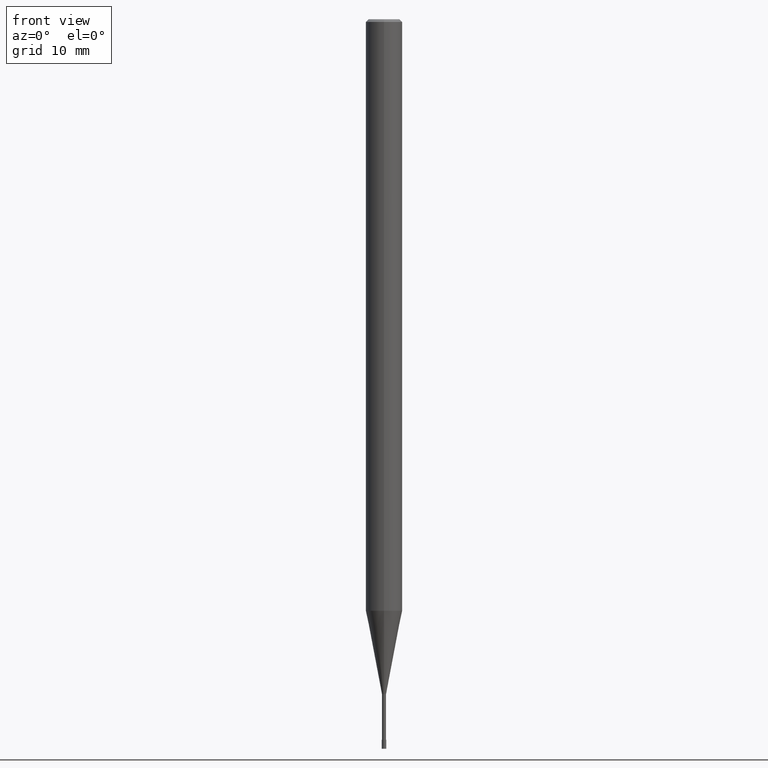
[diagram: clean part render]
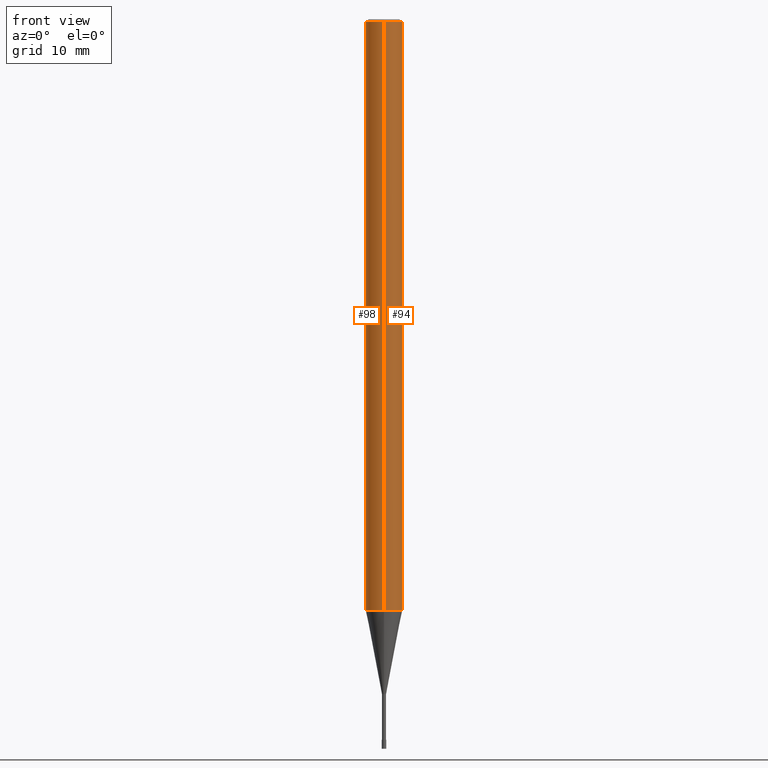
[diagram: same view with one multi-face feature highlighted, each face labeled with its STEP entity id]
A machine part, front view. The highlighted faces form ONE feature: a constant-radius fillet chain: 2 tangent blend faces with common blend radius 2 mm. The faces share edges in the B-rep.
Their STEP definitions:
[1] entity #94 (Cylinder):
#92=VERTEX_POINT('',#229);
#94=ADVANCED_FACE('',(#231),#232,.T.);
#132=VERTEX_POINT('',#277);
#134=EDGE_CURVE('',#132,#182,#279,.T.);
#140=EDGE_CURVE('',#176,#182,#285,.T.);
#148=EDGE_CURVE('',#176,#92,#293,.T.);
#174=EDGE_CURVE('',#92,#132,#322,.T.);
#176=VERTEX_POINT('',#324);
#182=VERTEX_POINT('',#330);
#229=CARTESIAN_POINT('',(0.0,2.0,-64.868));
#231=FACE_OUTER_BOUND('',#376,.T.);
#232=CYLINDRICAL_SURFACE('',#377,2.0);
#277=CARTESIAN_POINT('',(2.44921270764475E-016,-2.0,-64.868));
#279=LINE('',#430,#431);
#285=CIRCLE('',#441,2.0);
#293=LINE('',#455,#456);
#322=CIRCLE('',#492,2.0);
#324=CARTESIAN_POINT('',(0.0,2.0,-0.299999999999997));
#330=CARTESIAN_POINT('',(2.44921270764475E-016,-2.0,-0.299999999999997));
#376=EDGE_LOOP('',(#543,#544,#545,#546));
#377=AXIS2_PLACEMENT_3D('',#547,#548,#549);
#430=CARTESIAN_POINT('',(2.44921270764475E-016,-2.0,-32.584));
#431=VECTOR('',#613,1.0);
#441=AXIS2_PLACEMENT_3D('',#618,#619,#620);
#455=CARTESIAN_POINT('',(-2.44921270764475E-016,2.0,-32.584));
#456=VECTOR('',#626,1.0);
#492=AXIS2_PLACEMENT_3D('',#669,#670,#671);
#543=ORIENTED_EDGE('',*,*,#148,.F.);
#544=ORIENTED_EDGE('',*,*,#140,.T.);
#545=ORIENTED_EDGE('',*,*,#134,.F.);
#546=ORIENTED_EDGE('',*,*,#174,.F.);
#547=CARTESIAN_POINT('',(0.0,0.0,-32.584));
#548=DIRECTION('',(-0.0,-0.0,1.0));
#549=DIRECTION('',(0.0,1.0,0.0));
#613=DIRECTION('',(-0.0,-0.0,1.0));
#618=CARTESIAN_POINT('',(0.0,0.0,-0.299999999999997));
#619=DIRECTION('',(0.0,0.0,-1.0));
#620=DIRECTION('',(0.0,1.0,0.0));
#626=DIRECTION('',(0.0,0.0,-1.0));
#669=CARTESIAN_POINT('',(0.0,0.0,-64.868));
#670=DIRECTION('',(0.0,0.0,-1.0));
#671=DIRECTION('',(0.0,1.0,0.0));
[2] entity #98 (Cylinder):
#92=VERTEX_POINT('',#229);
#98=ADVANCED_FACE('',(#237),#238,.T.);
#116=EDGE_CURVE('',#182,#176,#259,.T.);
#132=VERTEX_POINT('',#277);
#134=EDGE_CURVE('',#132,#182,#279,.T.);
#148=EDGE_CURVE('',#176,#92,#293,.T.);
#150=EDGE_CURVE('',#132,#92,#295,.T.);
#176=VERTEX_POINT('',#324);
#182=VERTEX_POINT('',#330);
#229=CARTESIAN_POINT('',(0.0,2.0,-64.868));
#237=FACE_OUTER_BOUND('',#382,.T.);
#238=CYLINDRICAL_SURFACE('',#383,2.0);
#259=CIRCLE('',#406,2.0);
#277=CARTESIAN_POINT('',(2.44921270764475E-016,-2.0,-64.868));
#279=LINE('',#430,#431);
#293=LINE('',#455,#456);
#295=CIRCLE('',#459,2.0);
#324=CARTESIAN_POINT('',(0.0,2.0,-0.299999999999997));
#330=CARTESIAN_POINT('',(2.44921270764475E-016,-2.0,-0.299999999999997));
#382=EDGE_LOOP('',(#557,#558,#559,#560));
#383=AXIS2_PLACEMENT_3D('',#561,#562,#563);
#406=AXIS2_PLACEMENT_3D('',#588,#589,#590);
#430=CARTESIAN_POINT('',(2.44921270764475E-016,-2.0,-32.584));
#431=VECTOR('',#613,1.0);
#455=CARTESIAN_POINT('',(-2.44921270764475E-016,2.0,-32.584));
#456=VECTOR('',#626,1.0);
#459=AXIS2_PLACEMENT_3D('',#627,#628,#629);
#557=ORIENTED_EDGE('',*,*,#148,.T.);
#558=ORIENTED_EDGE('',*,*,#150,.F.);
#559=ORIENTED_EDGE('',*,*,#134,.T.);
#560=ORIENTED_EDGE('',*,*,#116,.T.);
#561=CARTESIAN_POINT('',(0.0,0.0,-32.584));
#562=DIRECTION('',(-0.0,-0.0,1.0));
#563=DIRECTION('',(0.0,1.0,0.0));
#588=CARTESIAN_POINT('',(0.0,0.0,-0.299999999999997));
#589=DIRECTION('',(0.0,0.0,-1.0));
#590=DIRECTION('',(0.0,1.0,0.0));
#613=DIRECTION('',(-0.0,-0.0,1.0));
#626=DIRECTION('',(0.0,0.0,-1.0));
#627=CARTESIAN_POINT('',(0.0,0.0,-64.868));
#628=DIRECTION('',(0.0,0.0,-1.0));
#629=DIRECTION('',(0.0,1.0,0.0));